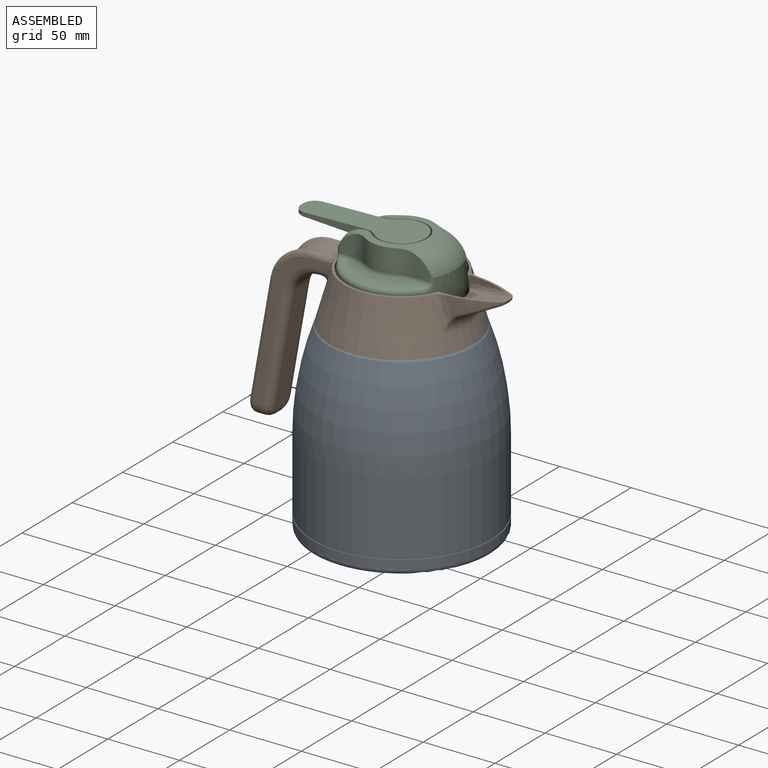
[diagram: assembled view]
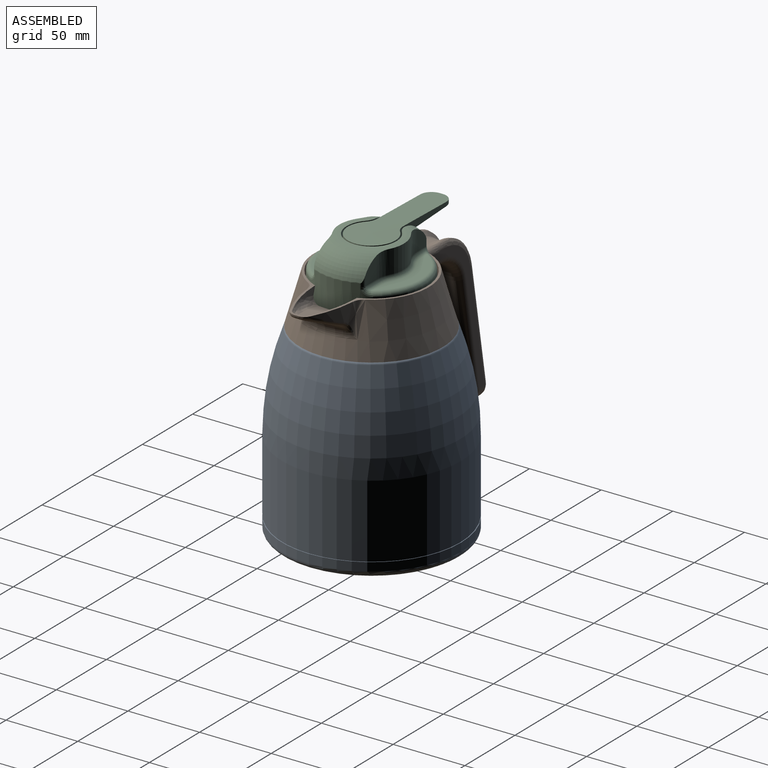
[diagram: assembled view, second angle]
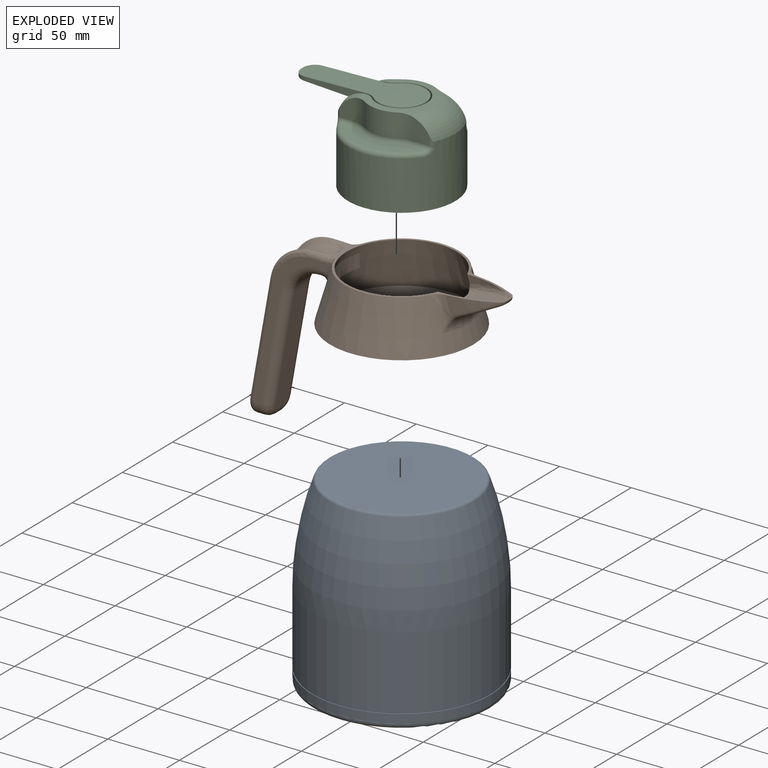
[diagram: exploded view]
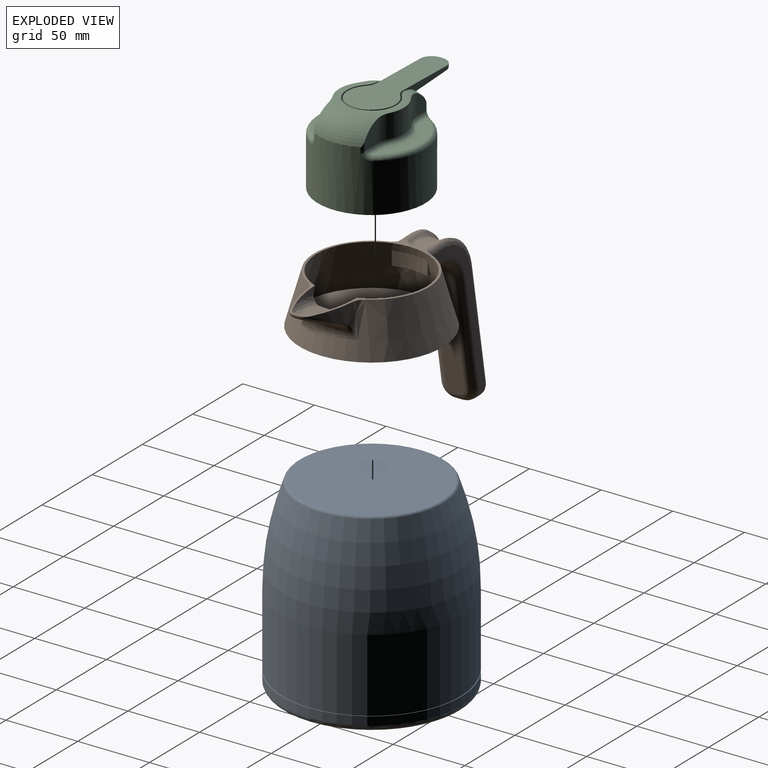
[diagram: exploded view, second angle]
ASSEMBLY  parts=3 mates=2
PART A: 10 faces, bbox 135.3x135.3x130 mm
  f0: cylinder r=62.5mm len=125mm, axis (0,0,-1), area 2356.2mm2, adj f1,f9
  f1: torus R=58.5mm, axis (0,0,-1), area 2410mm2, adj f0,f2
  f2: plane 117x117mm, normal (0,0,-1), area 10751.3mm2, adj f1
  f3: plane 97.22x97.22mm, normal (0,0,1), area 7423.6mm2, adj f4
  f4: torus R=48.61mm, axis (0,0,-1), area 760.3mm2, adj f3,f5
  f5: revolved ~125x125mm, area 25263.2mm2, adj f4,f6
  f6: cylinder r=62.5mm len=125mm, axis (0,0,-1), area 19774.7mm2, adj f5,f7
  f7: plane 125x125mm, normal (0,0,-1), area 195.6mm2, adj f6,f8
  f8: cylinder r=62mm len=124mm, axis (0,0,-1), area 389.6mm2, adj f7,f9
  f9: plane 125x125mm, normal (0,0,1), area 195.6mm2, adj f0,f8
PART B: 130 faces, bbox 176.4x101.6x136.5 mm
  f0: plane 1.14x0.13mm, normal (0,0,-1), area 0.1mm2, adj f27,f87,f126
  f1: cone r=38.56mm half-angle=15.9deg, axis (0,0,-1), area 8273.6mm2, adj f2,f6,f7,f8,f9,f10,f17,f18
  f2: plane 121.72x81.57mm, normal (0,0,1), area 521.8mm2, adj f1,f4,f21,f22,f23,f24,f25,f50
  f3: plane 6.34x5.39mm, normal (0,0,1), area 29.9mm2, adj f26,f32,f34,f36
  f4: cone r=40mm half-angle=15.9deg, axis (0,0,-1), area 8662.3mm2, adj f2,f5,f102,f103,f104,f121,f122,f123
  f5: plane 100x100mm, normal (0,0,-1), area 7854mm2, adj f4
  f6: plane 96.02x96.02mm, normal (0,0,1), area 7241.7mm2, adj f1
  f7: plane 25x4.73mm, normal (0,0,-1), area 69.2mm2, adj f1,f8,f9,f10
  f8: plane 9.57x2.89mm, normal (0,1,0), area 13.7mm2, adj f1,f7,f9
  f9: cylinder r=40mm len=25mm, axis (0,0,1), area 242.6mm2, adj f1,f7,f8,f10
  f10: plane 9.57x2.89mm, normal (0,-1,0), area 13.7mm2, adj f1,f7,f9
  f11: plane 101.29x51.84mm, normal (0,-1,0), area 696.2mm2, adj f28,f77,f78,f79,f80,f81,f82,f83
  f12: plane 101.29x51.84mm, normal (0,1,0), area 696.3mm2, adj f29,f62,f63,f64,f65,f66,f67,f68
  f13: plane 1.14x0.13mm, normal (0,0,-1), area 0.1mm2, adj f27,f95,f124
  f14: plane 78.52x13.84mm, normal (0.98,0,-0.17), area 1029.5mm2, adj f27,f89,f90,f91,f92,f93
  f15: plane 5.74x5mm, normal (0,0,-1), area 28.7mm2, adj f28,f29,f73,f74,f75,f91
  f16: plane 78.07x13.77mm, normal (-0.98,0,0.17), area 461.2mm2, adj f26,f35,f37,f39,f41,f43
  f17: plane 32.06x9.85mm, normal (0,0,-1), area 210.6mm2, adj f1,f18,f19,f20
  f18: cylinder r=80.98mm len=22.74mm, axis (0,0,1), area 81.9mm2, adj f1,f17,f19
  f19: cylinder r=40mm len=32.06mm, axis (0,0,1), area 620.3mm2, adj f1,f17,f18,f20,f97,f98,f99,f114
  f20: cylinder r=80.98mm len=22.74mm, axis (0,0,1), area 81.9mm2, adj f1,f17,f19
  f21: cylinder r=80.98mm len=30.14mm, axis (0,0,1), area 199.2mm2, adj f2,f23,f102,f106,f107
  f22: cylinder r=80.98mm len=30.14mm, axis (0,0,1), area 199.2mm2, adj f2,f24,f103,f111,f112
  f23: cylinder r=6.35mm len=5.65mm, axis (0,0,1), area 2.3mm2, adj f2,f21,f25,f108
  f24: cylinder r=6.35mm len=5.65mm, axis (0,0,1), area 2.3mm2, adj f2,f22,f25,f110
  f25: plane 2.91x0.08mm, normal (1,0,0), area 0.2mm2, adj f2,f23,f24,f109
  f26: cylinder r=30mm len=29.54mm, axis (0,-1,0), area 251.9mm2, adj f3,f16,f30,f31,f33,f38,f40,f42
  f27: cylinder r=20mm len=19.7mm, axis (0,1,0), area 363mm2, adj f0,f13,f14,f88,f94,f125
  f28: cylinder r=10mm len=10mm, axis (1,0,0), area 86.8mm2, adj f11,f15,f76,f92
  f29: cylinder r=10mm len=10mm, axis (-1,0,0), area 86.8mm2, adj f12,f15,f72,f90
  f30: bspline ~5.29x4.47mm, area 8.5mm2, adj f26,f31,f32,f54
  f31: bspline ~30.98x27.12mm, area 161.9mm2, adj f26,f30,f33,f56,f58,f60
  f32: cylinder r=5mm len=3.31mm, axis (1,0,0), area 8mm2, adj f3,f30,f34,f52
  f33: bspline ~4.65x4.61mm, area 7.2mm2, adj f26,f31,f35,f61
  f34: torus R=3.17mm, axis (0,0,-1), area 55.6mm2, adj f3,f32,f36,f50
  f35: cylinder r=5mm len=76.59mm, axis (0.17,0,0.98), area 308.2mm2, adj f16,f33,f37,f59
  f36: cylinder r=5mm len=3.31mm, axis (1,0,0), area 8mm2, adj f3,f34,f38,f48
  f37: torus R=1.77mm, axis (0.98,0,-0.17), area 22.8mm2, adj f16,f35,f39,f57
  f38: bspline ~6.74x4.58mm, area 8.5mm2, adj f26,f36,f40,f46
  f39: cylinder r=5mm len=3.26mm, axis (0,1,0), area 9.1mm2, adj f16,f37,f41,f55
  f40: bspline ~30.98x27.12mm, area 161.9mm2, adj f26,f38,f42,f44,f45,f47
  f41: torus R=1.77mm, axis (0.98,0,-0.17), area 22.8mm2, adj f16,f39,f43,f53
  f42: bspline ~4.64x4.18mm, area 7.2mm2, adj f26,f40,f43,f49
  f43: cylinder r=5mm len=76.59mm, axis (0.17,0,0.98), area 308.2mm2, adj f16,f41,f42,f51
  f44: bspline ~3.86x3.42mm, area 1.1mm2, adj f40,f45,f46,f66
  f45: bspline ~29.54x24.92mm, area 172.2mm2, adj f40,f44,f47,f67
  f46: bspline ~7.07x3.41mm, area 8.7mm2, adj f38,f44,f48,f65
  f47: bspline ~7.09x3.91mm, area 1mm2, adj f40,f45,f49,f68
  f48: cylinder r=5mm len=3.31mm, axis (1,0,0), area 8mm2, adj f36,f46,f50,f64
  f49: bspline ~3.63x3.27mm, area 7.4mm2, adj f42,f47,f51,f69
  f50: torus R=9.78mm, axis (0,0,-1), area 91.4mm2, adj f2,f34,f48,f52,f63,f85
  f51: cylinder r=5mm len=76.59mm, axis (0.17,0,0.98), area 308.2mm2, adj f43,f49,f53,f70
  f52: cylinder r=5mm len=3.31mm, axis (1,0,0), area 8mm2, adj f32,f50,f54,f84
  f53: torus R=8.91mm, axis (0.98,0,-0.17), area 43.9mm2, adj f41,f51,f55,f71,f72,f73
  f54: bspline ~8.74x3.52mm, area 8.7mm2, adj f30,f52,f56,f83
  f55: cylinder r=5mm len=3.26mm, axis (0,1,0), area 9.1mm2, adj f39,f53,f57,f74
  f56: bspline ~6.81x3.7mm, area 1.1mm2, adj f31,f54,f58,f82
  f57: torus R=8.91mm, axis (0.98,0,-0.17), area 43.9mm2, adj f37,f55,f59,f75,f76,f77
  f58: bspline ~32.84x27.34mm, area 172.2mm2, adj f31,f56,f60,f81
  f59: cylinder r=5mm len=76.59mm, axis (0.17,0,0.98), area 308.2mm2, adj f35,f57,f61,f78
  f60: bspline ~4.45x3.65mm, area 1mm2, adj f31,f58,f61,f80
  f61: bspline ~3.6x2.03mm, area 7.4mm2, adj f33,f59,f60,f79
  f62: cylinder r=4mm len=4mm, axis (1,0,0), area 14mm2, adj f2,f12,f63,f129
  f63: bspline ~4.85x4mm, area 26.2mm2, adj f12,f50,f62,f64
  f64: cylinder r=4mm len=3.79mm, axis (1,0,0), area 11.1mm2, adj f12,f48,f63,f65
  f65: bspline ~3.79x2.72mm, area 11.7mm2, adj f12,f46,f64,f66
  f66: bspline ~3.77x2.67mm, area 1.4mm2, adj f12,f44,f65,f67
  f67: bspline ~29.54x25.38mm, area 177.5mm2, adj f12,f45,f66,f68
  f68: bspline ~3.66x2.41mm, area 1.1mm2, adj f12,f47,f67,f69
  f69: bspline ~3.93x2.44mm, area 8.4mm2, adj f12,f49,f68,f70
  f70: cylinder r=4mm len=76.97mm, axis (0.17,0,0.98), area 362.9mm2, adj f12,f51,f69,f71
  f71: bspline ~4.16x3.4mm, area 6.7mm2, adj f12,f53,f70,f72
  f72: bspline ~10.4x10mm, area 77.9mm2, adj f29,f53,f71,f73
  f73: bspline ~4.07x3.92mm, area 8.2mm2, adj f15,f53,f72,f74
  f74: cylinder r=4mm len=3.9mm, axis (0,1,0), area 12.4mm2, adj f15,f55,f73,f75
  f75: bspline ~4.05x3.62mm, area 8.2mm2, adj f15,f57,f74,f76
  f76: bspline ~10.4x10mm, area 77.9mm2, adj f28,f57,f75,f77
  f77: bspline ~4.19x3.57mm, area 6.7mm2, adj f11,f57,f76,f78
  f78: cylinder r=4mm len=76.97mm, axis (0.17,0,0.98), area 362.9mm2, adj f11,f59,f77,f79
  f79: bspline ~3.93x2.44mm, area 8.4mm2, adj f11,f61,f78,f80
  f80: bspline ~3.66x2.41mm, area 1.1mm2, adj f11,f60,f79,f81
  f81: bspline ~29.54x25.38mm, area 177.5mm2, adj f11,f58,f80,f82
  f82: bspline ~3.77x2.67mm, area 1.4mm2, adj f11,f56,f81,f83
  f83: bspline ~3.79x2.72mm, area 11.7mm2, adj f11,f54,f82,f84
  f84: cylinder r=4mm len=3.79mm, axis (1,0,0), area 11.1mm2, adj f11,f52,f83,f85
  f85: bspline ~4.85x4mm, area 26.2mm2, adj f11,f50,f84,f86
  f86: cylinder r=4mm len=4mm, axis (-1,0,0), area 14mm2, adj f2,f11,f85,f121
  f87: cylinder r=6mm len=6.18mm, axis (1,0,0), area 27.1mm2, adj f0,f12,f88,f127
  f88: torus R=26mm, axis (0,-1,0), area 291.9mm2, adj f12,f27,f87,f89
  f89: cylinder r=6mm len=75.56mm, axis (-0.17,0,-0.98), area 713.1mm2, adj f12,f14,f88,f90
  f90: bspline ~10x10mm, area 105.7mm2, adj f14,f29,f89,f91
  f91: cylinder r=6mm len=5.91mm, axis (0,1,0), area 41.9mm2, adj f14,f15,f90,f92
  f92: bspline ~11.74x10.51mm, area 105.7mm2, adj f14,f28,f91,f93
  f93: cylinder r=6mm len=75.56mm, axis (-0.17,0,-0.98), area 713.1mm2, adj f11,f14,f92,f94
  f94: torus R=26mm, axis (0,1,0), area 291.9mm2, adj f11,f27,f93,f95
  f95: cylinder r=6mm len=6.18mm, axis (-1,0,0), area 27.1mm2, adj f11,f13,f94,f123
  f96: cone r=75mm half-angle=65.3deg, axis (0,0,1), area 423.5mm2, adj f104,f107,f108,f109,f110,f111
  f97: cylinder r=79.48mm len=22.21mm, axis (0,0,1), area 63.1mm2, adj f2,f19,f101,f119
  f98: cylinder r=79.48mm len=22.21mm, axis (0,0,1), area 63.1mm2, adj f2,f19,f100,f114
  f99: plane 32.04x18.99mm, normal (-0.26,0,0.97), area 421.4mm2, adj f19,f114,f115,f116,f117,f118,f119,f120
  f100: plane 5.47x1.69mm, normal (0,-1,0), area 4.6mm2, adj f1,f2,f98
  f101: plane 5.47x1.69mm, normal (0,1,0), area 4.6mm2, adj f1,f2,f97
  f102: bspline ~48.1x20.57mm, area 146.7mm2, adj f2,f4,f21,f105
  f103: bspline ~51.88x21.82mm, area 146.7mm2, adj f2,f4,f22,f113
  f104: torus R=54.14mm, axis (0,0,-1), area 353.6mm2, adj f4,f96,f105,f106,f112,f113
  f105: bspline ~10.46x6.78mm, area 15mm2, adj f102,f104,f106
  f106: bspline ~6.37x5.31mm, area 13.6mm2, adj f21,f104,f105,f107
  f107: bspline ~32.79x16.01mm, area 106.7mm2, adj f21,f96,f106,f108
  f108: bspline ~6.93x4.5mm, area 20.5mm2, adj f23,f96,f107,f109
  f109: bspline ~19.49x3.16mm, area 10.1mm2, adj f25,f96,f108,f110
  f110: bspline ~6.93x4.5mm, area 20.5mm2, adj f24,f96,f109,f111
  f111: bspline ~34.19x16.62mm, area 106.7mm2, adj f22,f96,f110,f112
  f112: bspline ~6.37x5.31mm, area 13.6mm2, adj f22,f104,f111,f113
  f113: bspline ~11.2x6.88mm, area 15mm2, adj f103,f104,f112
  f114: bspline ~38.05x14.19mm, area 175mm2, adj f19,f98,f99,f115
  f115: bspline ~14.36x9.37mm, area 70.3mm2, adj f2,f99,f114,f116
  f116: bspline ~5.12x3.56mm, area 11.3mm2, adj f2,f99,f115,f117
  f117: cylinder r=5mm len=2.91mm, axis (0,-1,0), area 9.2mm2, adj f2,f99,f116,f118
  f118: bspline ~5.52x3.58mm, area 11.3mm2, adj f2,f99,f117,f120
  f119: bspline ~38.05x14.19mm, area 175mm2, adj f19,f97,f99,f120
  f120: bspline ~14.36x9.37mm, area 70.3mm2, adj f2,f99,f118,f119
  f121: bspline ~11.01x8.7mm, area 37.2mm2, adj f2,f4,f86,f122
  f122: bspline ~18.87x9.81mm, area 31.5mm2, adj f4,f11,f121,f123
  f123: bspline ~13.61x11.2mm, area 100.1mm2, adj f4,f95,f122,f124
  f124: torus R=50.91mm, axis (0,0,1), area 9.9mm2, adj f4,f13,f123,f125
  f125: bspline ~20.76x7.58mm, area 93.2mm2, adj f4,f27,f124,f126
  f126: torus R=50.91mm, axis (0,0,1), area 9.9mm2, adj f0,f4,f125,f127
  f127: bspline ~13.61x11.86mm, area 100.1mm2, adj f4,f87,f126,f128
  f128: bspline ~18.88x9.81mm, area 31.5mm2, adj f4,f12,f127,f129
  f129: bspline ~11.01x8.7mm, area 37.2mm2, adj f2,f4,f62,f128
PART C: 53 faces, bbox 140x140x58 mm
  f0: plane 43.03x19.49mm, normal (1,0,0), area 341.5mm2, adj f24,f44,f45,f46,f47,f51
  f1: cylinder r=16.5mm len=33mm, axis (0,0,-1), area 1513.9mm2, adj f24,f46,f51,f52
  f2: plane 2.18x2.01mm, normal (0,-1,0), area 4.3mm2, adj f45,f46,f47,f48
  f3: cylinder r=37.5mm len=75mm, axis (0,0,-1), area 8435mm2, adj f10,f12,f13,f14,f15,f16,f24,f25
  f4: plane 15.11x9.22mm, normal (1,0,0), area 92.4mm2, adj f16,f20,f35,f42
  f5: cylinder r=22.5mm len=23.35mm, axis (0,0,-1), area 399mm2, adj f19,f20,f33,f42
  f6: plane 15.02x11.33mm, normal (1,0,0), area 133.9mm2, adj f15,f19,f32,f42
  f7: plane 15.02x11.33mm, normal (-1,0,0), area 133.9mm2, adj f13,f18,f26,f42
  f8: cylinder r=22.5mm len=23.35mm, axis (0,0,-1), area 399mm2, adj f17,f18,f28,f42
  f9: plane 15.11x9.22mm, normal (-1,0,0), area 92.4mm2, adj f14,f17,f30,f42
  f10: plane 19.39x17.27mm, normal (1,0,0), area 266.5mm2, adj f3,f24,f42,f49
  f11: cylinder r=17.5mm len=35mm, axis (0,0,-1), area 1593.4mm2, adj f21,f24,f49,f50
  f12: plane 19.39x17.27mm, normal (-1,0,0), area 266.5mm2, adj f3,f24,f42,f50
  f13: cylinder r=3mm len=6.54mm, axis (0,0,-1), area 15.2mm2, adj f3,f7,f27,f42
  f14: cylinder r=3mm len=6.92mm, axis (0,0,-1), area 16.9mm2, adj f3,f9,f31,f42
  f15: cylinder r=3mm len=6.54mm, axis (0,0,-1), area 15.2mm2, adj f3,f6,f34,f42
  f16: cylinder r=3mm len=6.92mm, axis (0,0,-1), area 16.9mm2, adj f3,f4,f37,f42
  f17: cylinder r=20mm len=16.22mm, axis (0,0,-1), area 188.6mm2, adj f8,f9,f38,f42
  f18: cylinder r=20mm len=16.22mm, axis (0,0,-1), area 153mm2, adj f7,f8,f39,f42
  f19: cylinder r=20mm len=16.22mm, axis (0,0,-1), area 153mm2, adj f5,f6,f40,f42
  f20: cylinder r=20mm len=16.22mm, axis (0,0,-1), area 188.6mm2, adj f4,f5,f41,f42
  f21: cone r=80mm half-angle=88.6deg, axis (0,0,-1), area 236.4mm2, adj f11,f42,f49,f50
  f22: plane 57.18x16.5mm, normal (0,0,1), area 464.6mm2, adj f32,f33,f35,f36,f40,f41
  f23: plane 57.18x16.5mm, normal (0,0,1), area 464.6mm2, adj f26,f28,f29,f30,f38,f39
  f24: plane 55x35mm, normal (0,0,1), area 268.1mm2, adj f0,f1,f3,f10,f11,f12,f43,f44
  f25: plane 75x75mm, normal (0,0,-1), area 4417.9mm2, adj f3
  f26: cylinder r=3mm len=11.31mm, axis (0,-1,0), area 47.7mm2, adj f7,f23,f27,f39
  f27: bspline ~8.26x7.53mm, area 31mm2, adj f3,f13,f26,f29
  f28: torus R=25.5mm, axis (0,0,1), area 121.5mm2, adj f8,f23,f38,f39
  f29: torus R=34.5mm, axis (0,0,1), area 335.7mm2, adj f3,f23,f27,f31
  f30: cylinder r=3mm len=8.24mm, axis (0,-1,0), area 34.3mm2, adj f9,f23,f31,f38
  f31: bspline ~7.26x7mm, area 30.6mm2, adj f3,f14,f29,f30
  f32: cylinder r=3mm len=11.31mm, axis (0,1,0), area 47.7mm2, adj f6,f22,f34,f40
  f33: torus R=25.5mm, axis (0,0,1), area 121.5mm2, adj f5,f22,f40,f41
  f34: bspline ~7.92x7.27mm, area 31mm2, adj f3,f15,f32,f36
  f35: cylinder r=3mm len=8.24mm, axis (0,1,0), area 34.3mm2, adj f4,f22,f37,f41
  f36: torus R=34.5mm, axis (0,0,1), area 335.7mm2, adj f3,f22,f34,f37
  f37: bspline ~8.37x6.83mm, area 30.6mm2, adj f3,f16,f35,f36
  f38: torus R=17mm, axis (0,0,1), area 53.8mm2, adj f17,f23,f28,f30
  f39: torus R=17mm, axis (0,0,1), area 43.7mm2, adj f18,f23,f26,f28
  f40: torus R=17mm, axis (0,0,1), area 43.7mm2, adj f19,f22,f32,f33
  f41: torus R=17mm, axis (0,0,1), area 53.8mm2, adj f20,f22,f33,f35
  f42: torus R=19.18mm, axis (0,0,-1), area 1338.4mm2, adj f3,f4,f5,f6,f7,f8,f9,f10
  f43: plane 43.03x19.49mm, normal (-1,0,0), area 341.5mm2, adj f24,f44,f45,f46,f48,f52
  f44: plane 18x14mm, normal (0,-1,0), area 252mm2, adj f0,f24,f43,f45
  f45: plane 40.18x18.18mm, normal (0,-0.05,-1), area 693.5mm2, adj f0,f2,f43,f44,f47,f48
  f46: cone r=80mm half-angle=88.6deg, axis (0,0,-1), area 1803.1mm2, adj f0,f1,f2,f43,f47,f48,f51,f52
  f47: cylinder r=8mm len=8mm, axis (0,0,-1), area 31mm2, adj f0,f2,f45,f46
  f48: cylinder r=8mm len=8mm, axis (0,0,1), area 31mm2, adj f2,f43,f45,f46
  f49: cylinder r=10mm len=19.56mm, axis (0,0,-1), area 147.6mm2, adj f10,f11,f21,f24,f42
  f50: cylinder r=10mm len=19.56mm, axis (0,0,-1), area 147.6mm2, adj f11,f12,f21,f24,f42
  f51: cylinder r=10mm len=19.59mm, axis (0,0,-1), area 150.7mm2, adj f0,f1,f24,f46
  f52: cylinder r=10mm len=19.59mm, axis (0,0,-1), area 150.7mm2, adj f1,f24,f43,f46
PLACE A at identity
PLACE B t=(0,0,130)mm
PLACE C rot(axis=(0,0,-1),90deg) t=(0,0,131.5)mm
MATE fastened C.f3 <-> B.f1  axis (0,0,-1) through (0,0,131.5)mm
MATE fastened B.f1 <-> A.f0  axis (0,0,-1) through (0,0,130)mm
